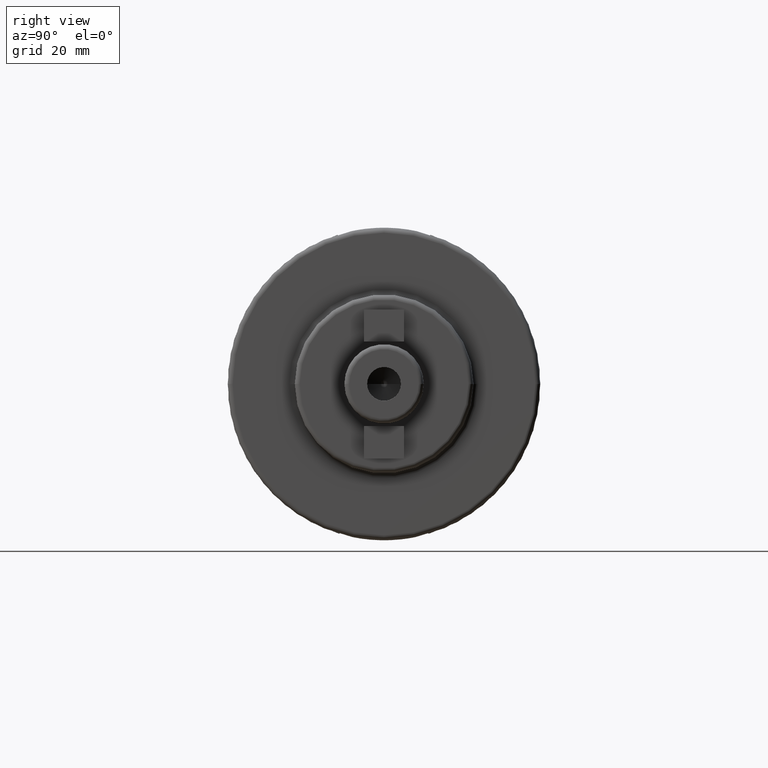
[diagram: clean part render]
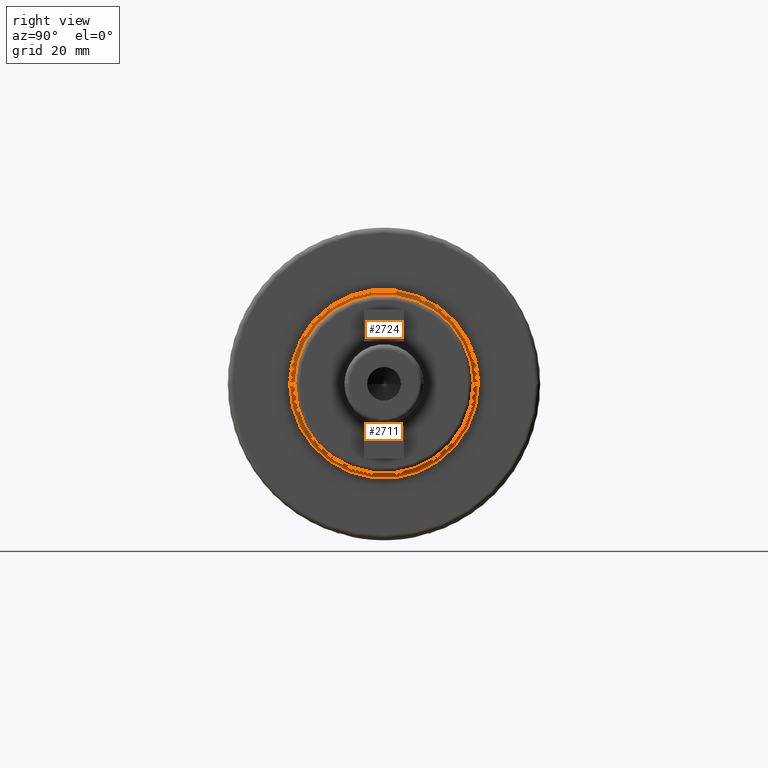
[diagram: same view with one multi-face feature highlighted, each face labeled with its STEP entity id]
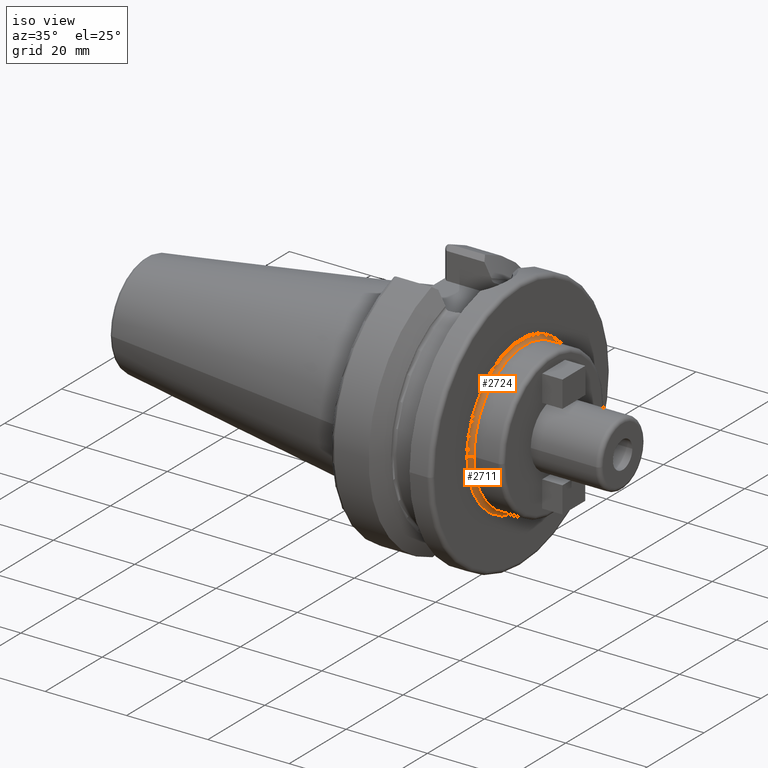
[diagram: same view with one multi-face feature highlighted, each face labeled with its STEP entity id]
A machine part, right view. The highlighted faces form ONE feature: a constant-radius fillet chain: 2 tangent blend faces with common blend radius 1 mm. The faces share edges in the B-rep.
A second angle (iso view) of the same feature is appended — it is thin or edge-on in the first view.
Their STEP definitions:
[1] entity #2724 (Torus):
#841=CARTESIAN_POINT('',(2.7E1,0.E0,0.E0));
#842=DIRECTION('',(1.E0,0.E0,0.E0));
#843=DIRECTION('',(0.E0,1.E0,0.E0));
#844=AXIS2_PLACEMENT_3D('',#841,#842,#843);
#846=CARTESIAN_POINT('',(2.8E1,-1.9E1,8.168465903680E-14));
#847=DIRECTION('',(0.E0,0.E0,-1.E0));
#848=DIRECTION('',(-1.E0,1.243449787580E-13,0.E0));
#849=AXIS2_PLACEMENT_3D('',#846,#847,#848);
#851=CARTESIAN_POINT('',(2.8E1,1.9E1,-8.376632720797E-14));
#852=DIRECTION('',(0.E0,0.E0,1.E0));
#853=DIRECTION('',(-1.E0,-1.243449787580E-13,0.E0));
#854=AXIS2_PLACEMENT_3D('',#851,#852,#853);
#856=CARTESIAN_POINT('',(2.8E1,0.E0,0.E0));
#857=DIRECTION('',(1.E0,0.E0,0.E0));
#858=DIRECTION('',(0.E0,1.E0,0.E0));
#859=AXIS2_PLACEMENT_3D('',#856,#857,#858);
#1527=CARTESIAN_POINT('',(2.7E1,-1.9E1,0.E0));
#1528=CARTESIAN_POINT('',(2.7E1,1.9E1,0.E0));
#1529=VERTEX_POINT('',#1527);
#1530=VERTEX_POINT('',#1528);
#1531=CARTESIAN_POINT('',(2.8E1,-1.8E1,0.E0));
#1532=CARTESIAN_POINT('',(2.8E1,1.8E1,0.E0));
#1533=VERTEX_POINT('',#1531);
#1534=VERTEX_POINT('',#1532);
#2712=CARTESIAN_POINT('',(2.8E1,0.E0,0.E0));
#2713=DIRECTION('',(1.E0,0.E0,0.E0));
#2714=DIRECTION('',(0.E0,9.999635116450E-1,-8.542562763796E-3));
#2715=AXIS2_PLACEMENT_3D('',#2712,#2713,#2714);
#2716=TOROIDAL_SURFACE('',#2715,1.9E1,1.E0);
#2718=ORIENTED_EDGE('',*,*,#2717,.T.);
#2719=ORIENTED_EDGE('',*,*,#2703,.F.);
#2720=ORIENTED_EDGE('',*,*,#2692,.F.);
#2721=ORIENTED_EDGE('',*,*,#2707,.T.);
#2722=EDGE_LOOP('',(#2718,#2719,#2720,#2721));
#2723=FACE_OUTER_BOUND('',#2722,.F.);
#2724=ADVANCED_FACE('',(#2723),#2716,.F.);
#845=CIRCLE('',#844,1.9E1);
#850=CIRCLE('',#849,1.E0);
#855=CIRCLE('',#854,1.E0);
#860=CIRCLE('',#859,1.8E1);
#2692=EDGE_CURVE('',#1530,#1529,#845,.T.);
#2703=EDGE_CURVE('',#1529,#1533,#850,.T.);
#2707=EDGE_CURVE('',#1530,#1534,#855,.T.);
#2717=EDGE_CURVE('',#1534,#1533,#860,.T.);
[2] entity #2711 (Torus):
#836=CARTESIAN_POINT('',(2.7E1,0.E0,0.E0));
#837=DIRECTION('',(1.E0,0.E0,0.E0));
#838=DIRECTION('',(0.E0,-1.E0,0.E0));
#839=AXIS2_PLACEMENT_3D('',#836,#837,#838);
#846=CARTESIAN_POINT('',(2.8E1,-1.9E1,8.168465903680E-14));
#847=DIRECTION('',(0.E0,0.E0,-1.E0));
#848=DIRECTION('',(-1.E0,1.243449787580E-13,0.E0));
#849=AXIS2_PLACEMENT_3D('',#846,#847,#848);
#851=CARTESIAN_POINT('',(2.8E1,1.9E1,-8.376632720797E-14));
#852=DIRECTION('',(0.E0,0.E0,1.E0));
#853=DIRECTION('',(-1.E0,-1.243449787580E-13,0.E0));
#854=AXIS2_PLACEMENT_3D('',#851,#852,#853);
#879=CARTESIAN_POINT('',(2.8E1,0.E0,0.E0));
#880=DIRECTION('',(1.E0,0.E0,0.E0));
#881=DIRECTION('',(0.E0,-1.E0,0.E0));
#882=AXIS2_PLACEMENT_3D('',#879,#880,#881);
#1527=CARTESIAN_POINT('',(2.7E1,-1.9E1,0.E0));
#1528=CARTESIAN_POINT('',(2.7E1,1.9E1,0.E0));
#1529=VERTEX_POINT('',#1527);
#1530=VERTEX_POINT('',#1528);
#1531=CARTESIAN_POINT('',(2.8E1,-1.8E1,0.E0));
#1532=CARTESIAN_POINT('',(2.8E1,1.8E1,0.E0));
#1533=VERTEX_POINT('',#1531);
#1534=VERTEX_POINT('',#1532);
#2697=CARTESIAN_POINT('',(2.8E1,0.E0,0.E0));
#2698=DIRECTION('',(1.E0,0.E0,0.E0));
#2699=DIRECTION('',(0.E0,-9.999635116450E-1,8.542562763796E-3));
#2700=AXIS2_PLACEMENT_3D('',#2697,#2698,#2699);
#2701=TOROIDAL_SURFACE('',#2700,1.9E1,1.E0);
#2702=ORIENTED_EDGE('',*,*,#2690,.F.);
#2704=ORIENTED_EDGE('',*,*,#2703,.T.);
#2706=ORIENTED_EDGE('',*,*,#2705,.T.);
#2708=ORIENTED_EDGE('',*,*,#2707,.F.);
#2709=EDGE_LOOP('',(#2702,#2704,#2706,#2708));
#2710=FACE_OUTER_BOUND('',#2709,.F.);
#2711=ADVANCED_FACE('',(#2710),#2701,.F.);
#840=CIRCLE('',#839,1.9E1);
#850=CIRCLE('',#849,1.E0);
#855=CIRCLE('',#854,1.E0);
#883=CIRCLE('',#882,1.8E1);
#2690=EDGE_CURVE('',#1529,#1530,#840,.T.);
#2703=EDGE_CURVE('',#1529,#1533,#850,.T.);
#2705=EDGE_CURVE('',#1533,#1534,#883,.T.);
#2707=EDGE_CURVE('',#1530,#1534,#855,.T.);